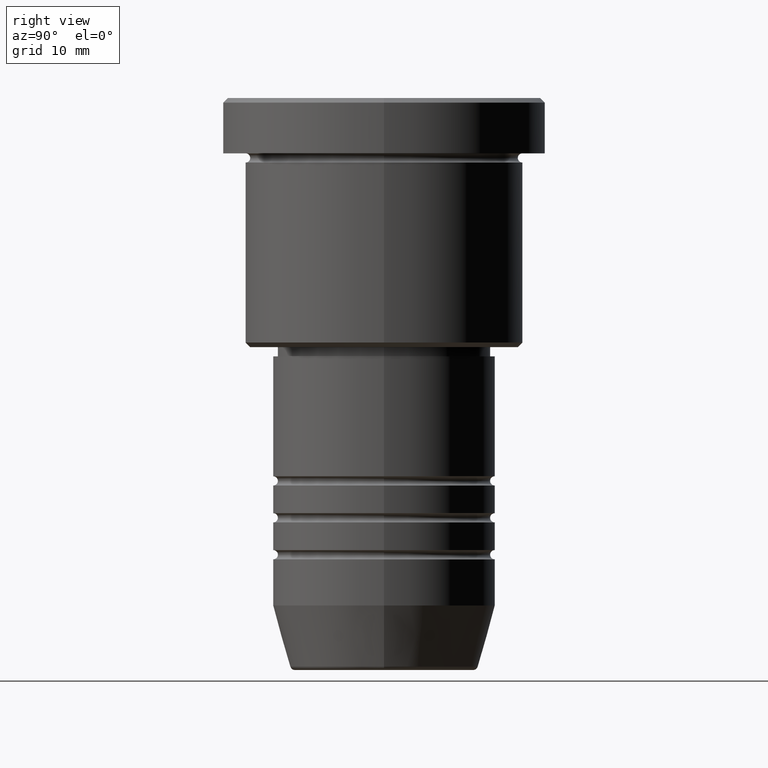
[diagram: clean part render]
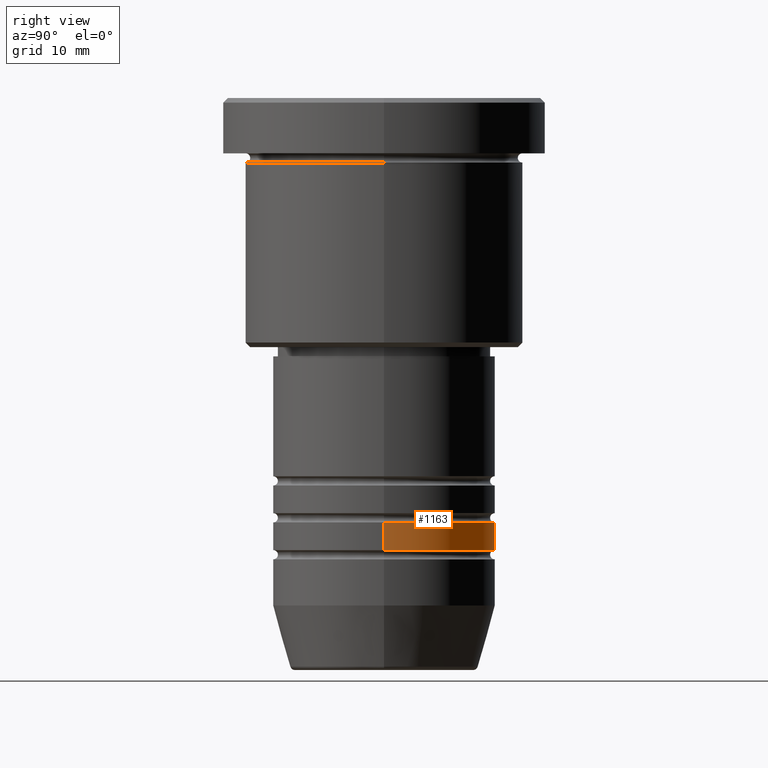
[diagram: same view with one face highlighted and labeled with its STEP entity id]
A machine part, right view. The second image highlights one B-rep face of the part: STEP entity #1163.
In plain terms, the highlighted cylindrical surface (partial cylindrical patch) has radius 12 mm, axis along (-0, -0, 1).
Its self-contained STEP definition (entity closure, byte-faithful):
#44 = DIRECTION ( 'NONE',  ( 1.000000000000000000, 0.000000000000000000, 0.000000000000000000 ) ) ;
#121 = DIRECTION ( 'NONE',  ( -0.000000000000000000, -0.000000000000000000, 1.000000000000000000 ) ) ;
#192 = DIRECTION ( 'NONE',  ( -0.000000000000000000, -0.000000000000000000, 1.000000000000000000 ) ) ;
#253 = CARTESIAN_POINT ( 'NONE',  ( 12.00000000000000000, 0.000000000000000000, -48.99999999999988631 ) ) ;
#272 = DIRECTION ( 'NONE',  ( -0.000000000000000000, -0.000000000000000000, 1.000000000000000000 ) ) ;
#290 = CARTESIAN_POINT ( 'NONE',  ( 0.000000000000000000, 0.000000000000000000, -48.99999999999988631 ) ) ;
#320 = ORIENTED_EDGE ( 'NONE', *, *, #560, .F. ) ;
#364 = CARTESIAN_POINT ( 'NONE',  ( -12.00000000000000000, 1.469576158976823947E-15, -48.99999999999988631 ) ) ;
#369 = VERTEX_POINT ( 'NONE', #364 ) ;
#375 = LINE ( 'NONE', #451, #904 ) ;
#432 = EDGE_CURVE ( 'NONE', #369, #447, #919, .T. ) ;
#447 = VERTEX_POINT ( 'NONE', #834 ) ;
#451 = CARTESIAN_POINT ( 'NONE',  ( 12.00000000000000000, 0.000000000000000000, 0.000000000000000000 ) ) ;
#483 = ORIENTED_EDGE ( 'NONE', *, *, #737, .F. ) ;
#530 = EDGE_LOOP ( 'NONE', ( #981, #851, #320, #483 ) ) ;
#539 = DIRECTION ( 'NONE',  ( 1.000000000000000000, 0.000000000000000000, 0.000000000000000000 ) ) ;
#560 = EDGE_CURVE ( 'NONE', #609, #447, #1095, .T. ) ;
#573 = FACE_OUTER_BOUND ( 'NONE', #530, .T. ) ;
#609 = VERTEX_POINT ( 'NONE', #740 ) ;
#614 = EDGE_CURVE ( 'NONE', #674, #369, #830, .T. ) ;
#670 = DIRECTION ( 'NONE',  ( -0.000000000000000000, -0.000000000000000000, 1.000000000000000000 ) ) ;
#674 = VERTEX_POINT ( 'NONE', #253 ) ;
#722 = CARTESIAN_POINT ( 'NONE',  ( 0.000000000000000000, 0.000000000000000000, -45.99999999999988631 ) ) ;
#729 = AXIS2_PLACEMENT_3D ( 'NONE', #722, #1089, #539 ) ;
#737 = EDGE_CURVE ( 'NONE', #674, #609, #375, .T. ) ;
#740 = CARTESIAN_POINT ( 'NONE',  ( 12.00000000000000000, 0.000000000000000000, -45.99999999999988631 ) ) ;
#830 = CIRCLE ( 'NONE', #1077, 12.00000000000000000 ) ;
#834 = CARTESIAN_POINT ( 'NONE',  ( -12.00000000000000000, 1.469576158976823947E-15, -45.99999999999988631 ) ) ;
#851 = ORIENTED_EDGE ( 'NONE', *, *, #432, .T. ) ;
#904 = VECTOR ( 'NONE', #272, 1000.000000000000000 ) ;
#919 = LINE ( 'NONE', #926, #1042 ) ;
#926 = CARTESIAN_POINT ( 'NONE',  ( -12.00000000000000000, 1.469576158976823947E-15, 0.000000000000000000 ) ) ;
#952 = CARTESIAN_POINT ( 'NONE',  ( 0.000000000000000000, 0.000000000000000000, 0.000000000000000000 ) ) ;
#981 = ORIENTED_EDGE ( 'NONE', *, *, #614, .T. ) ;
#1037 = CYLINDRICAL_SURFACE ( 'NONE', #1135, 12.00000000000000000 ) ;
#1042 = VECTOR ( 'NONE', #192, 1000.000000000000000 ) ;
#1077 = AXIS2_PLACEMENT_3D ( 'NONE', #290, #121, #1105 ) ;
#1089 = DIRECTION ( 'NONE',  ( -0.000000000000000000, -0.000000000000000000, 1.000000000000000000 ) ) ;
#1095 = CIRCLE ( 'NONE', #729, 12.00000000000000000 ) ;
#1105 = DIRECTION ( 'NONE',  ( 1.000000000000000000, 0.000000000000000000, 0.000000000000000000 ) ) ;
#1135 = AXIS2_PLACEMENT_3D ( 'NONE', #952, #670, #44 ) ;
#1163 = ADVANCED_FACE ( 'NONE', ( #573 ), #1037, .T. ) ;